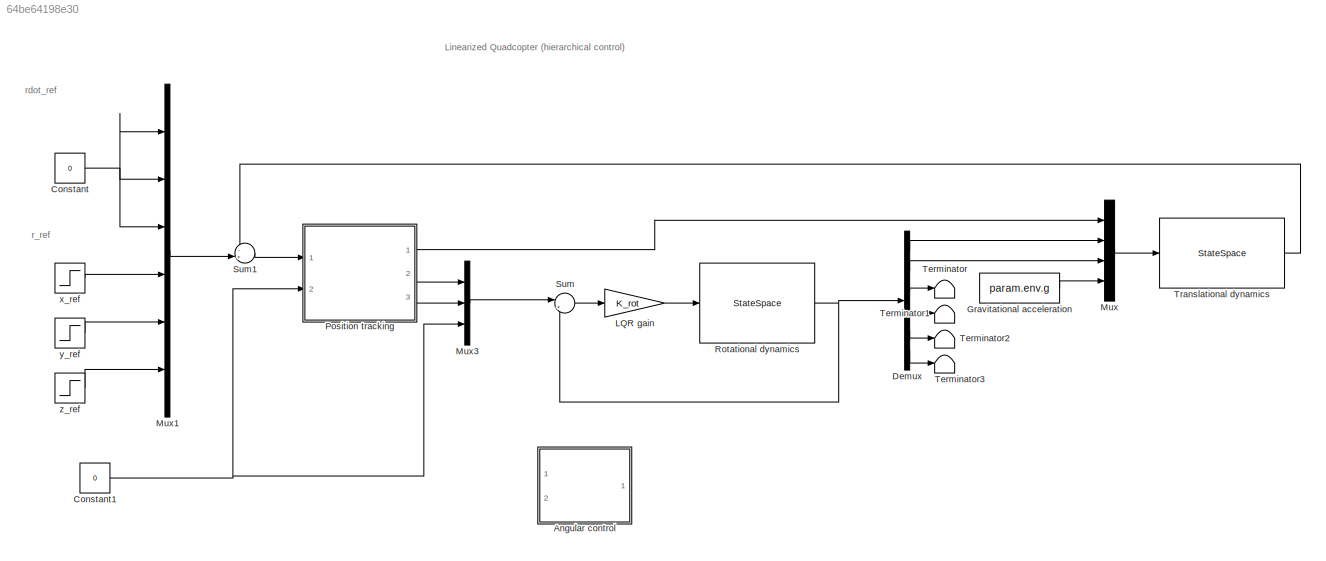
MODEL slx_64be64198e30
KIND model
CONFIG AbsTol = auto
CONFIG EnableMultiTasking = off
CONFIG FixedStep = auto
CONFIG MaxStep = auto
CONFIG MinStep = auto
CONFIG RelTol = 1e-3
CONFIG SampleTimeConstraint = Unconstrained
CONFIG Solver = VariableStepAuto
CONFIG SolverName = VariableStepAuto
CONFIG StartTime = 0.0
CONFIG StopTime = 10.0
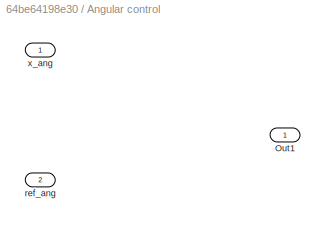
BLOCK [SubSystem] Angular control
  Ports = [2, 1]
  RequestExecContextInheritance = off
BLOCK [Outport] Angular control/Out1
  IconDisplay = Port number
BLOCK [Inport] Angular control/ref_ang
  IconDisplay = Port number
  Port = 2
BLOCK [Inport] Angular control/x_ang
  IconDisplay = Port number
BLOCK [Constant] Constant
  Value = 0
BLOCK [Constant] Constant1
  Value = 0
BLOCK [Demux] Demux
  DisplayOption = bar
  Outputs = 6
  Ports = [1, 6]
BLOCK [Constant] Gravitational acceleration
  Value = param.env.g
BLOCK [Gain] LQR gain
  AttributesFormatString = %<Gain>
  Gain = K_rot
  Multiplication = Matrix(K*u) (u vector)
  OutDataTypeStr = Inherit: Inherit via internal rule
  ParamDataTypeStr = Inherit: Inherit via internal rule
  SaturateOnIntegerOverflow = off
BLOCK [Mux] Mux
  DisplayOption = bar
  Ports = [4, 1]
BLOCK [Mux] Mux1
  DisplayOption = bar
  Inputs = 6
  Ports = [6, 1]
BLOCK [Mux] Mux3
  DisplayOption = bar
  Inputs = 3
  Ports = [3, 1]
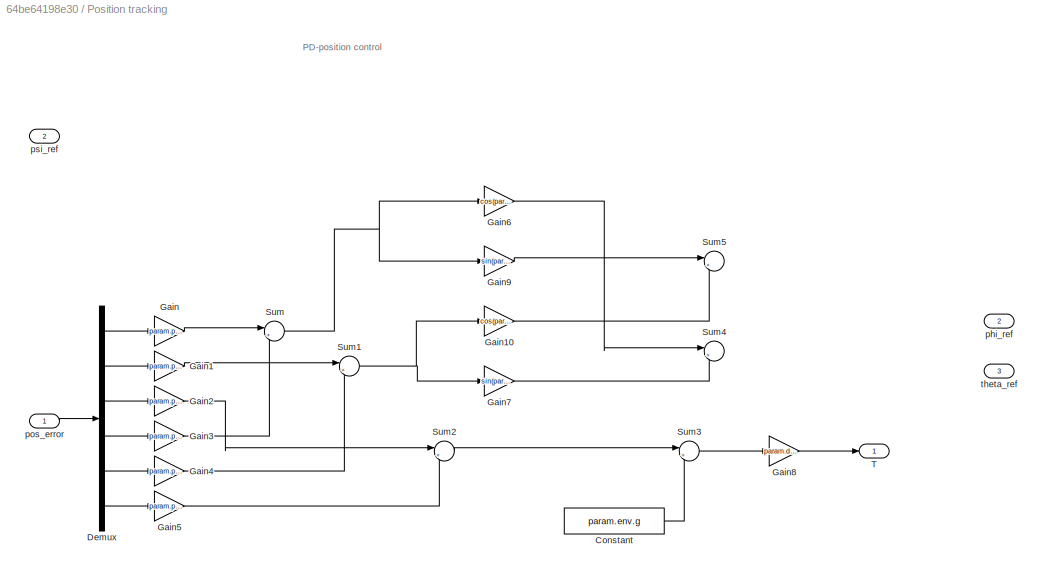
BLOCK [SubSystem] Position tracking
  Ports = [2, 3]
  RequestExecContextInheritance = off
BLOCK [Constant] Position tracking/Constant
  Value = param.env.g
BLOCK [Demux] Position tracking/Demux
  DisplayOption = bar
  Outputs = 6
  Ports = [1, 6]
BLOCK [Gain] Position tracking/Gain
  Gain = param.pid.Kd
  OutDataTypeStr = Inherit: Inherit via internal rule
  ParamDataTypeStr = Inherit: Inherit via internal rule
  SaturateOnIntegerOverflow = off
BLOCK [Gain] Position tracking/Gain1
  Gain = param.pid.Kd
  OutDataTypeStr = Inherit: Inherit via internal rule
  ParamDataTypeStr = Inherit: Inherit via internal rule
  SaturateOnIntegerOverflow = off
BLOCK [Gain] Position tracking/Gain10
  AttributesFormatString = %<Gain>
  Gain = cos(param.sp.psi0)
  OutDataTypeStr = Inherit: Inherit via internal rule
  ParamDataTypeStr = Inherit: Inherit via internal rule
  SaturateOnIntegerOverflow = off
BLOCK [Gain] Position tracking/Gain2
  Gain = param.pid.Kd
  OutDataTypeStr = Inherit: Inherit via internal rule
  ParamDataTypeStr = Inherit: Inherit via internal rule
  SaturateOnIntegerOverflow = off
BLOCK [Gain] Position tracking/Gain3
  Gain = param.pid.Kp
  OutDataTypeStr = Inherit: Inherit via internal rule
  ParamDataTypeStr = Inherit: Inherit via internal rule
  SaturateOnIntegerOverflow = off
BLOCK [Gain] Position tracking/Gain4
  Gain = param.pid.Kp
  OutDataTypeStr = Inherit: Inherit via internal rule
  ParamDataTypeStr = Inherit: Inherit via internal rule
  SaturateOnIntegerOverflow = off
BLOCK [Gain] Position tracking/Gain5
  Gain = param.pid.Kp
  OutDataTypeStr = Inherit: Inherit via internal rule
  ParamDataTypeStr = Inherit: Inherit via internal rule
  SaturateOnIntegerOverflow = off
BLOCK [Gain] Position tracking/Gain6
  AttributesFormatString = %<Gain>
  Gain = cos(param.sp.psi0)
  OutDataTypeStr = Inherit: Inherit via internal rule
  ParamDataTypeStr = Inherit: Inherit via internal rule
  SaturateOnIntegerOverflow = off
BLOCK [Gain] Position tracking/Gain7
  AttributesFormatString = %<Gain>
  Gain = sin(param.sp.psi0)
  OutDataTypeStr = Inherit: Inherit via internal rule
  ParamDataTypeStr = Inherit: Inherit via internal rule
  SaturateOnIntegerOverflow = off
BLOCK [Gain] Position tracking/Gain8
  AttributesFormatString = %<Gain>
  Gain = param.drone.m
  OutDataTypeStr = Inherit: Inherit via internal rule
  ParamDataTypeStr = Inherit: Inherit via internal rule
  SaturateOnIntegerOverflow = off
BLOCK [Gain] Position tracking/Gain9
  AttributesFormatString = %<Gain>
  Gain = sin(param.sp.psi0)
  OutDataTypeStr = Inherit: Inherit via internal rule
  ParamDataTypeStr = Inherit: Inherit via internal rule
  SaturateOnIntegerOverflow = off
BLOCK [Sum] Position tracking/Sum
  IconShape = round
  InputSameDT = off
  Inputs = |++
  OutDataTypeStr = Inherit: Inherit via internal rule
  Ports = [2, 1]
  SaturateOnIntegerOverflow = off
BLOCK [Sum] Position tracking/Sum1
  IconShape = round
  InputSameDT = off
  Inputs = |++
  OutDataTypeStr = Inherit: Inherit via internal rule
  Ports = [2, 1]
  SaturateOnIntegerOverflow = off
BLOCK [Sum] Position tracking/Sum2
  IconShape = round
  InputSameDT = off
  Inputs = |++
  OutDataTypeStr = Inherit: Inherit via internal rule
  Ports = [2, 1]
  SaturateOnIntegerOverflow = off
BLOCK [Sum] Position tracking/Sum3
  IconShape = round
  InputSameDT = off
  Inputs = |++
  OutDataTypeStr = Inherit: Inherit via internal rule
  Ports = [2, 1]
  SaturateOnIntegerOverflow = off
BLOCK [Sum] Position tracking/Sum4
  IconShape = round
  InputSameDT = off
  Inputs = |++
  OutDataTypeStr = Inherit: Inherit via internal rule
  Ports = [2, 1]
  SaturateOnIntegerOverflow = off
BLOCK [Sum] Position tracking/Sum5
  IconShape = round
  InputSameDT = off
  Inputs = |+-
  OutDataTypeStr = Inherit: Inherit via internal rule
  Ports = [2, 1]
  SaturateOnIntegerOverflow = off
BLOCK [Outport] Position tracking/T
  IconDisplay = Port number
BLOCK [Outport] Position tracking/phi_ref
  IconDisplay = Port number
  Port = 2
BLOCK [Inport] Position tracking/pos_error
  IconDisplay = Port number
BLOCK [Inport] Position tracking/psi_ref
  IconDisplay = Port number
  Port = 2
BLOCK [Outport] Position tracking/theta_ref
  IconDisplay = Port number
  Port = 3
BLOCK [StateSpace] Rotational dynamics
  A = A_rot
  B = B_rot
  C = C_rot
  D = D_rot
  InitialCondition = 0
  Ports = [1, 1]
BLOCK [Sum] Sum
  IconShape = round
  InputSameDT = off
  Inputs = |+-
  OutDataTypeStr = Inherit: Inherit via internal rule
  Ports = [2, 1]
  SaturateOnIntegerOverflow = off
BLOCK [Sum] Sum1
  IconShape = round
  InputSameDT = off
  Inputs = -+|
  OutDataTypeStr = Inherit: Inherit via internal rule
  Ports = [2, 1]
  SaturateOnIntegerOverflow = off
BLOCK [Terminator] Terminator
BLOCK [Terminator] Terminator1
BLOCK [Terminator] Terminator2
BLOCK [Terminator] Terminator3
BLOCK [StateSpace] Translational dynamics
  A = A_trans
  B = B_trans
  C = C_trans
  D = D_trans
  InitialCondition = 0
  Ports = [1, 1]
BLOCK [Step] x_ref
  After = 5
  SampleTime = 0
BLOCK [Step] y_ref
  After = 2
  SampleTime = 0
BLOCK [Step] z_ref
  After = 3
  SampleTime = 0
ANNOTATION (root): Linearized Quadcopter (hierarchical control)
ANNOTATION (root): r_ref
ANNOTATION (root): rdot_ref
ANNOTATION Position tracking: PD-position control
NET Constant1:1 -> Mux3:3, Position tracking:2
NET Constant:1 -> Mux1:1, Mux1:2, Mux1:3
LINE Demux:1 -> Mux:2
LINE Demux:2 -> Mux:3
LINE Demux:3 -> Terminator:1
LINE Demux:4 -> Terminator1:1
LINE Demux:5 -> Terminator2:1
LINE Demux:6 -> Terminator3:1
LINE Gravitational acceleration:1 -> Mux:4
LINE LQR gain:1 -> Rotational dynamics:1
LINE Mux1:1 -> Sum1:2
LINE Mux3:1 -> Sum:1
LINE Mux:1 -> Translational dynamics:1
LINE Position tracking/Constant:1 -> Position tracking/Sum3:2
LINE Position tracking/Demux:1 -> Position tracking/Gain:1
LINE Position tracking/Demux:2 -> Position tracking/Gain1:1
LINE Position tracking/Demux:3 -> Position tracking/Gain2:1
LINE Position tracking/Demux:4 -> Position tracking/Gain3:1
LINE Position tracking/Demux:5 -> Position tracking/Gain4:1
LINE Position tracking/Demux:6 -> Position tracking/Gain5:1
LINE Position tracking/Gain10:1 -> Position tracking/Sum5:2
LINE Position tracking/Gain1:1 -> Position tracking/Sum1:1
LINE Position tracking/Gain2:1 -> Position tracking/Sum2:1
LINE Position tracking/Gain3:1 -> Position tracking/Sum:2
LINE Position tracking/Gain4:1 -> Position tracking/Sum1:2
LINE Position tracking/Gain5:1 -> Position tracking/Sum2:2
LINE Position tracking/Gain6:1 -> Position tracking/Sum4:1
LINE Position tracking/Gain7:1 -> Position tracking/Sum4:2
LINE Position tracking/Gain8:1 -> Position tracking/T:1
LINE Position tracking/Gain9:1 -> Position tracking/Sum5:1
LINE Position tracking/Gain:1 -> Position tracking/Sum:1
NET Position tracking/Sum1:1 -> Position tracking/Gain10:1, Position tracking/Gain7:1
LINE Position tracking/Sum2:1 -> Position tracking/Sum3:1
LINE Position tracking/Sum3:1 -> Position tracking/Gain8:1
NET Position tracking/Sum:1 -> Position tracking/Gain6:1, Position tracking/Gain9:1
LINE Position tracking/pos_error:1 -> Position tracking/Demux:1
LINE Position tracking:1 -> Mux:1
LINE Position tracking:2 -> Mux3:1
LINE Position tracking:3 -> Mux3:2
NET Rotational dynamics:1 -> Demux:1, Sum:2
LINE Sum1:1 -> Position tracking:1
LINE Sum:1 -> LQR gain:1
LINE Translational dynamics:1 -> Sum1:1
LINE x_ref:1 -> Mux1:4
LINE y_ref:1 -> Mux1:5
LINE z_ref:1 -> Mux1:6
note: NET lines group one-source signal fan-out (src -> all destinations, sorted); 1:1 wires keep LINE
